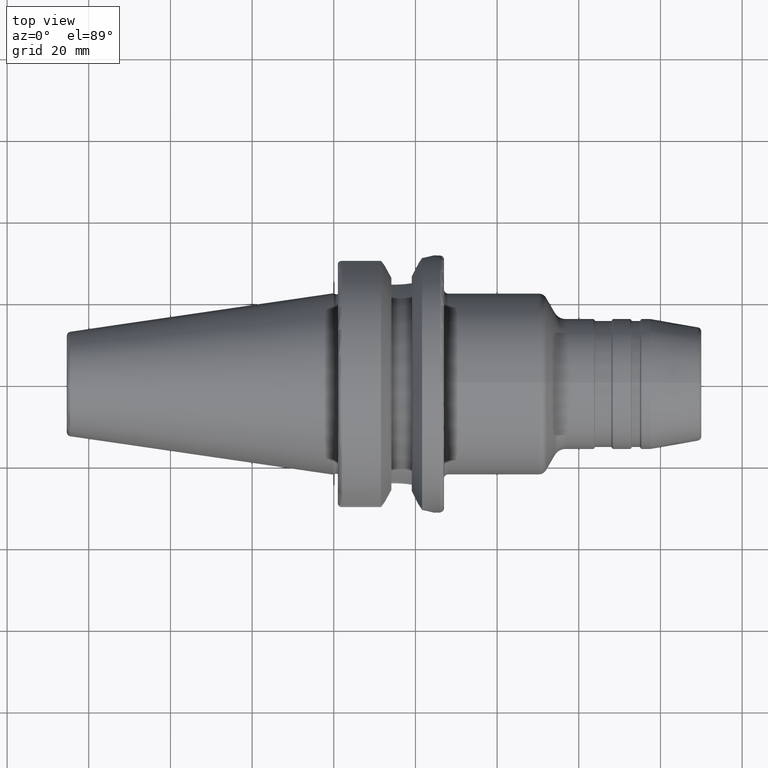
[diagram: clean part render]
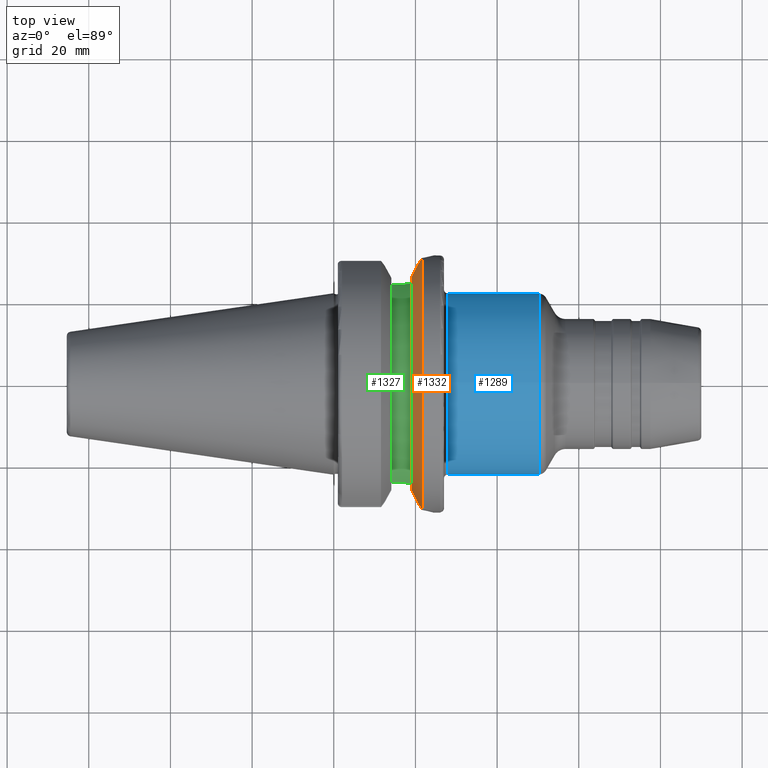
[diagram: same view with three faces highlighted in distinct colors, each labeled with its STEP entity id]
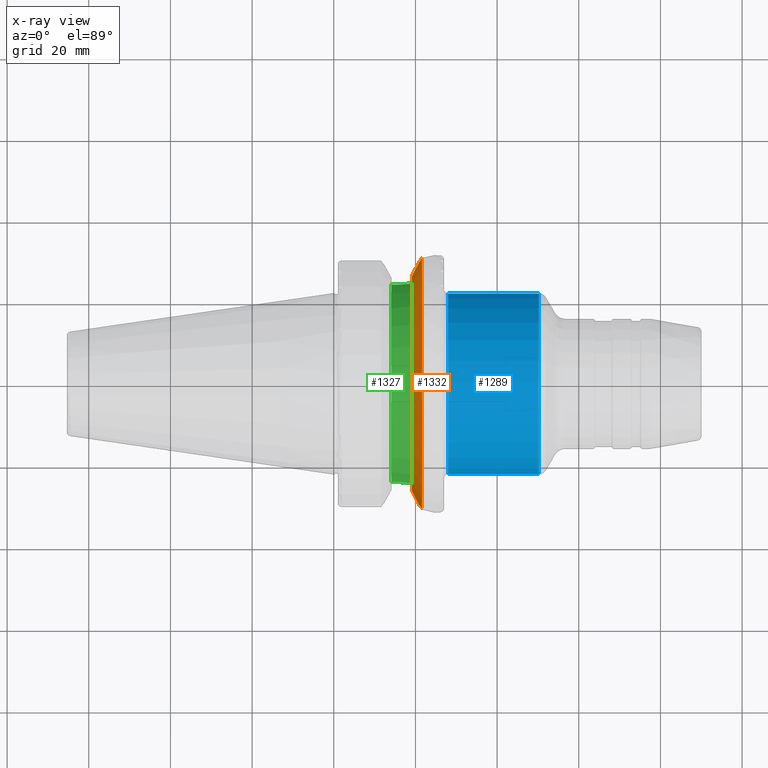
[diagram: x-ray of the same camera — body ghosted, the three highlighted faces saturated]
A machine part, top view with three faces highlighted in distinct colors.
The next image is the same camera in x-ray (body ghosted, the three faces saturated) — at least one of them is partly hidden behind the body in this view.
Their STEP definitions:

[orange] entity #1332 — the highlighted conical surface has half-angle 60.125 deg.
#30=B_SPLINE_CURVE_WITH_KNOTS('',3,(#2179,#2180,#2181,#2182,#2183,#2184,
#2185,#2186,#2187,#2188,#2189,#2190,#2191),.UNSPECIFIED.,.F.,.F.,(4,3,3,
3,4),(-1.38777878078145E-17,0.0731506810734824,0.104649820621108,0.171122097575984,
0.209508940919151),.UNSPECIFIED.);
#40=B_SPLINE_CURVE_WITH_KNOTS('',3,(#2385,#2386,#2387,#2388,#2389,#2390,
#2391,#2392,#2393,#2394,#2395,#2396,#2397),.UNSPECIFIED.,.F.,.F.,(4,3,3,
3,4),(0.,0.0664531587126267,0.104853023510377,0.177983430080747,0.209498394874234),
 .UNSPECIFIED.);
#42=B_SPLINE_CURVE_WITH_KNOTS('',3,(#2479,#2480,#2481,#2482,#2483,#2484),
 .UNSPECIFIED.,.F.,.F.,(4,2,4),(1.4642102789956,1.54570476603971,1.82831600250635),
 .UNSPECIFIED.);
#47=B_SPLINE_CURVE_WITH_KNOTS('',3,(#2572,#2573,#2574,#2575,#2576,#2577),
 .UNSPECIFIED.,.F.,.F.,(4,2,4),(3.3443816511031,3.62699288756974,3.70848737461385),
 .UNSPECIFIED.);
#112=CONICAL_SURFACE('',#1513,29.2970358274569,1.04937921276159);
#184=FACE_OUTER_BOUND('',#271,.T.);
#271=EDGE_LOOP('',(#1174,#1175,#1176,#1177,#1178,#1179));
#480=CIRCLE('',#1457,31.5000000000001);
#505=CIRCLE('',#1514,27.0940716549138);
#564=VERTEX_POINT('',#2170);
#565=VERTEX_POINT('',#2178);
#569=VERTEX_POINT('',#2208);
#595=VERTEX_POINT('',#2384);
#616=VERTEX_POINT('',#2478);
#632=VERTEX_POINT('',#2570);
#716=EDGE_CURVE('',#564,#565,#30,.T.);
#722=EDGE_CURVE('',#569,#564,#480,.T.);
#756=EDGE_CURVE('',#595,#569,#40,.T.);
#786=EDGE_CURVE('',#616,#565,#42,.T.);
#819=EDGE_CURVE('',#595,#632,#47,.T.);
#820=EDGE_CURVE('',#632,#616,#505,.T.);
#1174=ORIENTED_EDGE('',*,*,#716,.F.);
#1175=ORIENTED_EDGE('',*,*,#722,.F.);
#1176=ORIENTED_EDGE('',*,*,#756,.F.);
#1177=ORIENTED_EDGE('',*,*,#819,.T.);
#1178=ORIENTED_EDGE('',*,*,#820,.T.);
#1179=ORIENTED_EDGE('',*,*,#786,.T.);
#1332=ADVANCED_FACE('',(#184),#112,.T.);
#1457=AXIS2_PLACEMENT_3D('',#2218,#1741,#1742);
#1513=AXIS2_PLACEMENT_3D('',#2578,#1899,#1900);
#1514=AXIS2_PLACEMENT_3D('',#2579,#1901,#1902);
#1741=DIRECTION('center_axis',(1.,0.,0.));
#1742=DIRECTION('ref_axis',(0.,0.,-1.));
#1899=DIRECTION('center_axis',(1.,0.,0.));
#1900=DIRECTION('ref_axis',(0.,1.,0.));
#1901=DIRECTION('center_axis',(1.,0.,0.));
#1902=DIRECTION('ref_axis',(0.,0.,-1.));
#2170=CARTESIAN_POINT('',(21.6309636926619,-30.7261128229805,6.93945176433102));
#2178=CARTESIAN_POINT('',(20.7197593187301,-29.382324732277,5.61358863864523));
#2179=CARTESIAN_POINT('Ctrl Pts',(21.6309636926619,-30.7261128229805,6.93945176433103));
#2180=CARTESIAN_POINT('Ctrl Pts',(21.5238339856431,-30.5695121491321,6.78630067423795));
#2181=CARTESIAN_POINT('Ctrl Pts',(21.4169592784426,-30.4128404199059,6.63265120293179));
#2182=CARTESIAN_POINT('Ctrl Pts',(21.3105305033285,-30.2563346083311,6.47868470749181));
#2183=CARTESIAN_POINT('Ctrl Pts',(21.2647016089149,-30.188942229662,6.41238577418932));
#2184=CARTESIAN_POINT('Ctrl Pts',(21.2189548618227,-30.1215804376257,6.34602839655316));
#2185=CARTESIAN_POINT('Ctrl Pts',(21.1733030871153,-30.0542673557316,6.27962857959426));
#2186=CARTESIAN_POINT('Ctrl Pts',(21.076964664688,-29.9122173224097,6.13950579890778));
#2187=CARTESIAN_POINT('Ctrl Pts',(20.9808489178345,-29.770088529928,5.99890233767283));
#2188=CARTESIAN_POINT('Ctrl Pts',(20.8851377800928,-29.6281082801525,5.85799018832404));
#2189=CARTESIAN_POINT('Ctrl Pts',(20.829865889028,-29.5461166009798,5.776615322741));
#2190=CARTESIAN_POINT('Ctrl Pts',(20.7747281328587,-29.464174197473,5.69513801393082));
#2191=CARTESIAN_POINT('Ctrl Pts',(20.7197531070639,-29.3823227488288,5.6135954544323));
#2208=CARTESIAN_POINT('',(21.6309636926619,30.7261128229805,6.93945176433102));
#2218=CARTESIAN_POINT('Origin',(21.6309636926619,0.,0.));
#2384=CARTESIAN_POINT('',(20.7197593187301,29.382324732277,5.61358863864523));
#2385=CARTESIAN_POINT('Ctrl Pts',(20.7197515894297,29.3823222023351,5.61359762229939));
#2386=CARTESIAN_POINT('Ctrl Pts',(20.8149264355504,29.5240261146079,5.75476612102656));
#2387=CARTESIAN_POINT('Ctrl Pts',(20.9105912690136,29.6660033681223,5.89573769514717));
#2388=CARTESIAN_POINT('Ctrl Pts',(21.0065888437701,29.8080348169529,6.0363249563785));
#2389=CARTESIAN_POINT('Ctrl Pts',(21.0620609080478,29.8901074909654,6.11756310860712));
#2390=CARTESIAN_POINT('Ctrl Pts',(21.1176433000719,29.9721980100028,6.19867342831975));
#2391=CARTESIAN_POINT('Ctrl Pts',(21.1732991947734,30.0542619764308,6.27962385104281));
#2392=CARTESIAN_POINT('Ctrl Pts',(21.2792927504538,30.2105482358035,6.43378942836868));
#2393=CARTESIAN_POINT('Ctrl Pts',(21.3858010607359,30.3670979926343,6.5877245302749));
#2394=CARTESIAN_POINT('Ctrl Pts',(21.4926516371867,30.5236804762214,6.74123636578556));
#2395=CARTESIAN_POINT('Ctrl Pts',(21.5386980399477,30.5911584472727,6.80739106556624));
#2396=CARTESIAN_POINT('Ctrl Pts',(21.5848074729331,30.6586423209792,6.87346749570244));
#2397=CARTESIAN_POINT('Ctrl Pts',(21.6309636926619,30.7261128229805,6.93945176433103));
#2478=CARTESIAN_POINT('',(19.1,-26.201311395455,6.89782574439221));
#2479=CARTESIAN_POINT('Ctrl Pts',(19.1,-26.201311395455,6.89782574439221));
#2480=CARTESIAN_POINT('Ctrl Pts',(19.2210929544554,-26.438473693351,6.82497151762395));
#2481=CARTESIAN_POINT('Ctrl Pts',(19.3406963650697,-26.6728819297428,6.74867108656041));
#2482=CARTESIAN_POINT('Ctrl Pts',(19.867744184216,-27.7064624084632,6.39234949299032));
#2483=CARTESIAN_POINT('Ctrl Pts',(20.3012218741369,-28.558364647748,6.04376984297407));
#2484=CARTESIAN_POINT('Ctrl Pts',(20.7197593187301,-29.382324732277,5.61358863864523));
#2570=CARTESIAN_POINT('',(19.1,26.201311395455,6.89782574439221));
#2572=CARTESIAN_POINT('Ctrl Pts',(20.7197593187301,29.382324732277,5.61358863864523));
#2573=CARTESIAN_POINT('Ctrl Pts',(20.3012218741369,28.558364647748,6.04376984297407));
#2574=CARTESIAN_POINT('Ctrl Pts',(19.867744184216,27.7064624084632,6.39234949299032));
#2575=CARTESIAN_POINT('Ctrl Pts',(19.3406963650697,26.6728819297428,6.74867108656041));
#2576=CARTESIAN_POINT('Ctrl Pts',(19.2210929544554,26.438473693351,6.82497151762395));
#2577=CARTESIAN_POINT('Ctrl Pts',(19.1,26.201311395455,6.89782574439221));
#2578=CARTESIAN_POINT('Origin',(20.3654818463309,0.,0.));
#2579=CARTESIAN_POINT('Origin',(19.1,0.,0.));

[blue] entity #1289 — the highlighted cylindrical surface (bore or boss wall) has radius 22.25 mm, axis along (1, 0, 0).
#141=FACE_OUTER_BOUND('',#225,.T.);
#225=EDGE_LOOP('',(#946,#947,#948,#949,#950));
#301=LINE('',#2086,#371);
#371=VECTOR('',#1698,22.25);
#465=CIRCLE('',#1432,22.25);
#466=CIRCLE('',#1433,22.25);
#469=CIRCLE('',#1437,22.25);
#551=VERTEX_POINT('',#2076);
#552=VERTEX_POINT('',#2077);
#554=VERTEX_POINT('',#2084);
#696=EDGE_CURVE('',#551,#552,#465,.T.);
#697=EDGE_CURVE('',#552,#551,#466,.T.);
#700=EDGE_CURVE('',#554,#554,#469,.T.);
#701=EDGE_CURVE('',#554,#552,#301,.T.);
#946=ORIENTED_EDGE('',*,*,#700,.F.);
#947=ORIENTED_EDGE('',*,*,#701,.T.);
#948=ORIENTED_EDGE('',*,*,#696,.F.);
#949=ORIENTED_EDGE('',*,*,#697,.F.);
#950=ORIENTED_EDGE('',*,*,#701,.F.);
#1250=CYLINDRICAL_SURFACE('',#1436,22.25);
#1289=ADVANCED_FACE('',(#141),#1250,.T.);
#1432=AXIS2_PLACEMENT_3D('',#2078,#1686,#1687);
#1433=AXIS2_PLACEMENT_3D('',#2079,#1688,#1689);
#1436=AXIS2_PLACEMENT_3D('',#2083,#1694,#1695);
#1437=AXIS2_PLACEMENT_3D('',#2085,#1696,#1697);
#1686=DIRECTION('center_axis',(-1.,0.,0.));
#1687=DIRECTION('ref_axis',(0.,-1.22464679914735E-16,1.));
#1688=DIRECTION('center_axis',(-1.,0.,0.));
#1689=DIRECTION('ref_axis',(0.,-1.22464679914735E-16,1.));
#1694=DIRECTION('center_axis',(1.,0.,0.));
#1695=DIRECTION('ref_axis',(0.,0.,-1.));
#1696=DIRECTION('center_axis',(1.,0.,0.));
#1697=DIRECTION('ref_axis',(0.,1.22464679914735E-16,1.));
#1698=DIRECTION('',(-1.,0.,0.));
#2076=CARTESIAN_POINT('',(28.,0.,-22.25));
#2077=CARTESIAN_POINT('',(28.,-2.72483912810286E-15,22.25));
#2078=CARTESIAN_POINT('Origin',(28.,0.,0.));
#2079=CARTESIAN_POINT('Origin',(28.,0.,0.));
#2083=CARTESIAN_POINT('Origin',(39.1957804087824,0.,0.));
#2084=CARTESIAN_POINT('',(50.2368602791856,-2.72483912810286E-15,22.25));
#2085=CARTESIAN_POINT('Origin',(50.2368602791856,0.,0.));
#2086=CARTESIAN_POINT('',(39.1957804087824,-2.72483912810286E-15,22.25));

[green] entity #1327 — the highlighted cylindrical surface (partial cylindrical patch) has radius 25.5 mm, axis along (1, 0, 0).
#43=B_SPLINE_CURVE_WITH_KNOTS('',3,(#2487,#2488,#2489,#2490,#2491,#2492),
 .UNSPECIFIED.,.F.,.F.,(4,2,4),(0.,0.305559393991992,0.418764848000603),
 .UNSPECIFIED.);
#46=B_SPLINE_CURVE_WITH_KNOTS('',3,(#2553,#2554,#2555,#2556,#2557,#2558),
 .UNSPECIFIED.,.F.,.F.,(4,2,4),(-0.418764848000603,-0.305559393991992,0.),
 .UNSPECIFIED.);
#179=FACE_OUTER_BOUND('',#266,.T.);
#266=EDGE_LOOP('',(#1140,#1141,#1142,#1143,#1144,#1145));
#332=LINE('',#2463,#402);
#346=LINE('',#2559,#416);
#402=VECTOR('',#1827,10.);
#416=VECTOR('',#1883,10.);
#501=CIRCLE('',#1503,25.5);
#503=CIRCLE('',#1507,25.5);
#610=VERTEX_POINT('',#2460);
#611=VERTEX_POINT('',#2462);
#617=VERTEX_POINT('',#2485);
#627=VERTEX_POINT('',#2537);
#629=VERTEX_POINT('',#2550);
#630=VERTEX_POINT('',#2552);
#779=EDGE_CURVE('',#611,#610,#332,.T.);
#788=EDGE_CURVE('',#610,#617,#43,.T.);
#806=EDGE_CURVE('',#627,#611,#501,.T.);
#810=EDGE_CURVE('',#629,#617,#503,.T.);
#811=EDGE_CURVE('',#629,#630,#46,.T.);
#812=EDGE_CURVE('',#630,#627,#346,.T.);
#1140=ORIENTED_EDGE('',*,*,#779,.T.);
#1141=ORIENTED_EDGE('',*,*,#788,.T.);
#1142=ORIENTED_EDGE('',*,*,#810,.F.);
#1143=ORIENTED_EDGE('',*,*,#811,.T.);
#1144=ORIENTED_EDGE('',*,*,#812,.T.);
#1145=ORIENTED_EDGE('',*,*,#806,.T.);
#1259=CYLINDRICAL_SURFACE('',#1506,25.5);
#1327=ADVANCED_FACE('',(#179),#1259,.T.);
#1503=AXIS2_PLACEMENT_3D('',#2538,#1872,#1873);
#1506=AXIS2_PLACEMENT_3D('',#2549,#1879,#1880);
#1507=AXIS2_PLACEMENT_3D('',#2551,#1881,#1882);
#1827=DIRECTION('',(1.,0.,0.));
#1872=DIRECTION('center_axis',(1.,0.,0.));
#1873=DIRECTION('ref_axis',(0.,0.,-1.));
#1879=DIRECTION('center_axis',(1.,0.,0.));
#1880=DIRECTION('ref_axis',(0.,1.,0.));
#1881=DIRECTION('center_axis',(1.,0.,0.));
#1882=DIRECTION('ref_axis',(0.,0.,-1.));
#1883=DIRECTION('',(-1.,0.,0.));
#2460=CARTESIAN_POINT('',(14.95,-24.1960224003864,8.05));
#2462=CARTESIAN_POINT('',(14.1,-24.1960224003864,8.05));
#2463=CARTESIAN_POINT('',(16.6,-24.1960224003864,8.05));
#2485=CARTESIAN_POINT('',(19.1,-24.5493380766162,6.89782574439221));
#2487=CARTESIAN_POINT('Ctrl Pts',(14.95,-24.1960224003864,8.05));
#2488=CARTESIAN_POINT('Ctrl Pts',(15.9685313133066,-24.1960224003864,8.05));
#2489=CARTESIAN_POINT('Ctrl Pts',(17.0497516664971,-24.2670783971366,7.84501312719341));
#2490=CARTESIAN_POINT('Ctrl Pts',(18.4072379028184,-24.4390565244262,7.28065599998141));
#2491=CARTESIAN_POINT('Ctrl Pts',(18.7625417379862,-24.492291659194,7.10085374759973));
#2492=CARTESIAN_POINT('Ctrl Pts',(19.1,-24.5493380766162,6.89782574439221));
#2537=CARTESIAN_POINT('',(14.1,24.1960224003864,8.05));
#2538=CARTESIAN_POINT('Origin',(14.1,0.,0.));
#2549=CARTESIAN_POINT('Origin',(16.6,0.,0.));
#2550=CARTESIAN_POINT('',(19.1,24.5493380766162,6.89782574439221));
#2551=CARTESIAN_POINT('Origin',(19.1,0.,0.));
#2552=CARTESIAN_POINT('',(14.95,24.1960224003864,8.05));
#2553=CARTESIAN_POINT('Ctrl Pts',(19.1,24.5493380766162,6.89782574439221));
#2554=CARTESIAN_POINT('Ctrl Pts',(18.7625417379862,24.492291659194,7.10085374759973));
#2555=CARTESIAN_POINT('Ctrl Pts',(18.4072379028184,24.4390565244262,7.28065599998141));
#2556=CARTESIAN_POINT('Ctrl Pts',(17.0497516664971,24.2670783971366,7.84501312719341));
#2557=CARTESIAN_POINT('Ctrl Pts',(15.9685313133066,24.1960224003864,8.05));
#2558=CARTESIAN_POINT('Ctrl Pts',(14.95,24.1960224003864,8.05));
#2559=CARTESIAN_POINT('',(16.6,24.1960224003864,8.05));